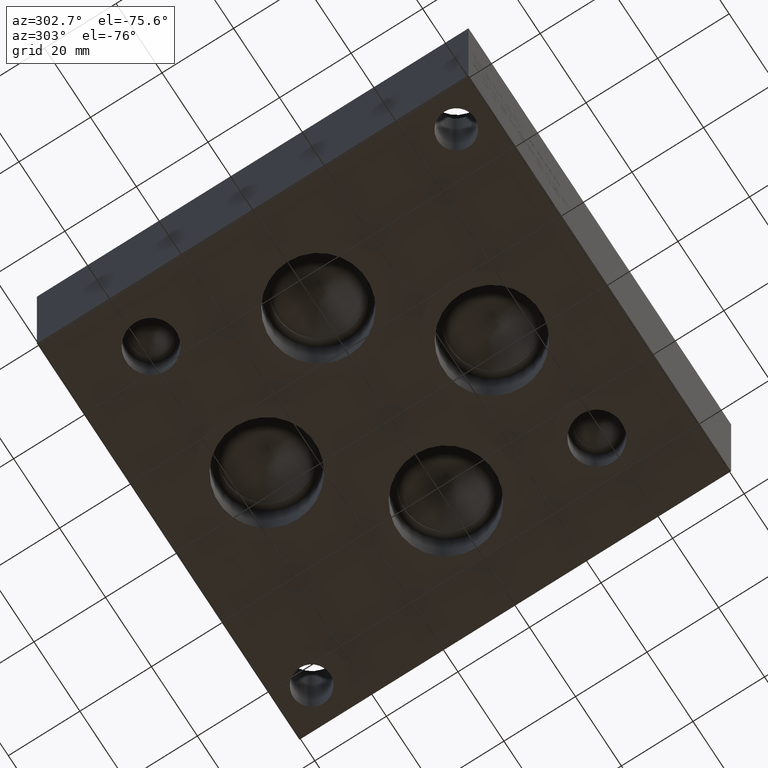
[diagram: clean part render]
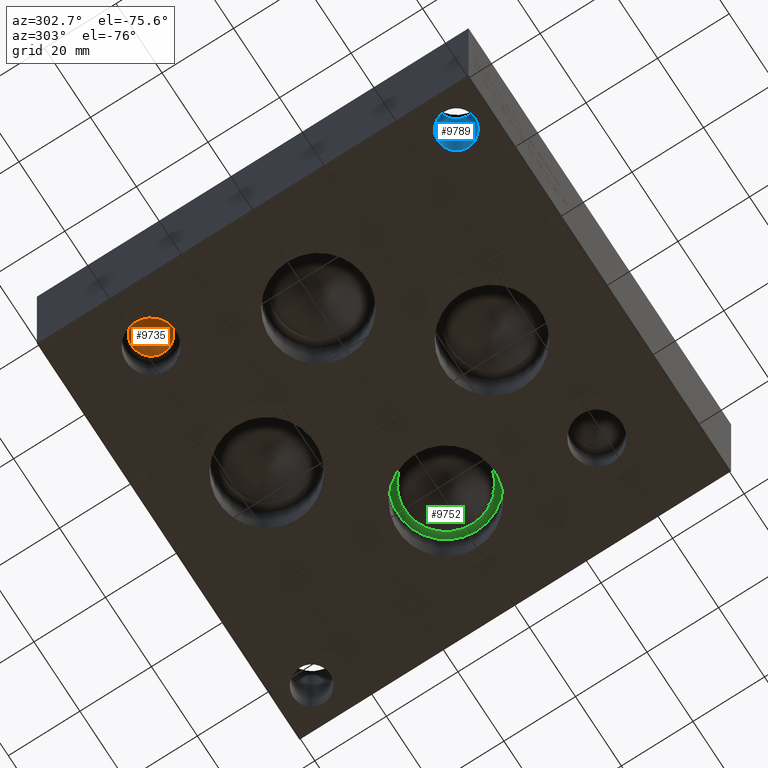
[diagram: same view with three faces highlighted in distinct colors, each labeled with its STEP entity id]
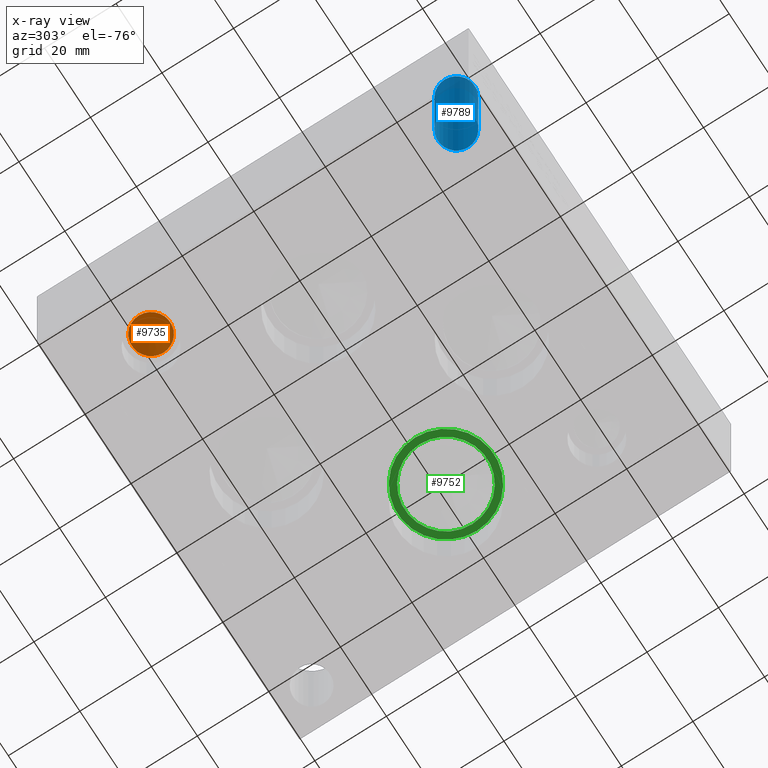
[diagram: x-ray of the same camera — body ghosted, the three highlighted faces saturated]
A machine part, auxiliary view with three faces highlighted in distinct colors.
The next image is the same camera in x-ray (body ghosted, the three faces saturated) — at least one of them is partly hidden behind the body in this view.
Their STEP definitions:

[orange] entity #9735 — the highlighted conical surface has half-angle 60 deg.
#44=CONICAL_SURFACE('',#10136,2.6797,1.0471975511966);
#74=CIRCLE('',#10137,5.3594);
#75=CIRCLE('',#10138,5.3594);
#1030=FACE_OUTER_BOUND('',#1571,.T.);
#1571=EDGE_LOOP('',(#8248,#8249,#8250,#8251));
#2597=LINE('',#16246,#3586);
#3586=VECTOR('',#11882,2.6797);
#4439=VERTEX_POINT('',#16242);
#4440=VERTEX_POINT('',#16243);
#4441=VERTEX_POINT('',#16245);
#5743=EDGE_CURVE('',#4439,#4440,#74,.T.);
#5744=EDGE_CURVE('',#4440,#4441,#2597,.T.);
#5745=EDGE_CURVE('',#4440,#4439,#75,.T.);
#8248=ORIENTED_EDGE('',*,*,#5743,.T.);
#8249=ORIENTED_EDGE('',*,*,#5744,.T.);
#8250=ORIENTED_EDGE('',*,*,#5744,.F.);
#8251=ORIENTED_EDGE('',*,*,#5745,.T.);
#9735=ADVANCED_FACE('',(#1030),#44,.F.);
#10136=AXIS2_PLACEMENT_3D('',#16241,#11878,#11879);
#10137=AXIS2_PLACEMENT_3D('',#16244,#11880,#11881);
#10138=AXIS2_PLACEMENT_3D('',#16247,#11883,#11884);
#11878=DIRECTION('center_axis',(0.,0.,-1.));
#11879=DIRECTION('ref_axis',(1.,0.,0.));
#11880=DIRECTION('center_axis',(0.,0.,-1.));
#11881=DIRECTION('ref_axis',(1.,0.,0.));
#11882=DIRECTION('',(0.866025403784439,-1.06057523872491E-16,0.5));
#11883=DIRECTION('center_axis',(0.,0.,-1.));
#11884=DIRECTION('ref_axis',(1.,0.,0.));
#16241=CARTESIAN_POINT('Origin',(15.0876,98.425,13.2611555163474));
#16242=CARTESIAN_POINT('',(20.447,98.425,11.71403));
#16243=CARTESIAN_POINT('',(9.7282,98.425,11.71403));
#16244=CARTESIAN_POINT('Origin',(15.0876,98.425,11.71403));
#16245=CARTESIAN_POINT('',(15.0876,98.425,14.8082810326949));
#16246=CARTESIAN_POINT('',(12.4079,98.425,13.2611555163474));
#16247=CARTESIAN_POINT('Origin',(15.0876,98.425,11.71403));

[blue] entity #9789 — the highlighted cylindrical surface (bore or boss wall) has radius 5.1562 mm, axis along (0, 0, 1).
#41=CYLINDRICAL_SURFACE('',#10277,5.1562);
#72=CIRCLE('',#9869,5.1562);
#158=CIRCLE('',#10273,5.1562);
#1084=FACE_OUTER_BOUND('',#1636,.T.);
#1636=EDGE_LOOP('',(#8497,#8498,#8499,#8500));
#2640=LINE('',#16529,#3629);
#3629=VECTOR('',#12205,5.1562);
#3767=VERTEX_POINT('',#12795);
#4539=VERTEX_POINT('',#16520);
#4732=EDGE_CURVE('',#3767,#3767,#72,.T.);
#5869=EDGE_CURVE('',#4539,#4539,#158,.T.);
#5873=EDGE_CURVE('',#4539,#3767,#2640,.T.);
#8497=ORIENTED_EDGE('',*,*,#5869,.T.);
#8498=ORIENTED_EDGE('',*,*,#5873,.T.);
#8499=ORIENTED_EDGE('',*,*,#4732,.F.);
#8500=ORIENTED_EDGE('',*,*,#5873,.F.);
#9789=ADVANCED_FACE('',(#1084),#41,.F.);
#9869=AXIS2_PLACEMENT_3D('',#12796,#10549,#10550);
#10273=AXIS2_PLACEMENT_3D('',#16521,#12194,#12195);
#10277=AXIS2_PLACEMENT_3D('',#16528,#12203,#12204);
#10549=DIRECTION('center_axis',(0.,0.,1.));
#10550=DIRECTION('ref_axis',(1.,0.,0.));
#12194=DIRECTION('center_axis',(0.,0.,1.));
#12195=DIRECTION('ref_axis',(1.,0.,0.));
#12203=DIRECTION('center_axis',(0.,0.,1.));
#12204=DIRECTION('ref_axis',(1.,0.,0.));
#12205=DIRECTION('',(0.,0.,-1.));
#12795=CARTESIAN_POINT('',(4.3688,9.525,0.));
#12796=CARTESIAN_POINT('Origin',(9.525,9.525,0.));
#16520=CARTESIAN_POINT('',(4.3688,9.525,30.1752));
#16521=CARTESIAN_POINT('Origin',(9.525,9.525,30.1752));
#16528=CARTESIAN_POINT('Origin',(9.525,9.525,-127.58695823863));
#16529=CARTESIAN_POINT('',(4.3688,9.525,-127.58695823863));

[green] entity #9752 — the highlighted planar face has unit normal (0, 0, -1).
#96=CIRCLE('',#10176,13.462);
#97=CIRCLE('',#10177,13.462);
#98=CIRCLE('',#10178,11.5062);
#217=FACE_BOUND('',#1593,.T.);
#1047=FACE_OUTER_BOUND('',#1592,.T.);
#1592=EDGE_LOOP('',(#8324,#8325));
#1593=EDGE_LOOP('',(#8326));
#4466=VERTEX_POINT('',#16321);
#4467=VERTEX_POINT('',#16322);
#4468=VERTEX_POINT('',#16325);
#5778=EDGE_CURVE('',#4466,#4467,#96,.T.);
#5779=EDGE_CURVE('',#4467,#4466,#97,.T.);
#5780=EDGE_CURVE('',#4468,#4468,#98,.T.);
#8324=ORIENTED_EDGE('',*,*,#5778,.T.);
#8325=ORIENTED_EDGE('',*,*,#5779,.T.);
#8326=ORIENTED_EDGE('',*,*,#5780,.F.);
#8873=PLANE('',#10175);
#9752=ADVANCED_FACE('',(#1047,#217),#8873,.T.);
#10175=AXIS2_PLACEMENT_3D('',#16320,#11969,#11970);
#10176=AXIS2_PLACEMENT_3D('',#16323,#11971,#11972);
#10177=AXIS2_PLACEMENT_3D('',#16324,#11973,#11974);
#10178=AXIS2_PLACEMENT_3D('',#16326,#11975,#11976);
#11969=DIRECTION('center_axis',(0.,0.,-1.));
#11970=DIRECTION('ref_axis',(1.,0.,0.));
#11971=DIRECTION('center_axis',(0.,0.,-1.));
#11972=DIRECTION('ref_axis',(1.,0.,0.));
#11973=DIRECTION('center_axis',(0.,0.,-1.));
#11974=DIRECTION('ref_axis',(1.,0.,0.));
#11975=DIRECTION('center_axis',(0.,0.,-1.));
#11976=DIRECTION('ref_axis',(1.,0.,0.));
#16320=CARTESIAN_POINT('Origin',(84.1248,60.325,15.8496));
#16321=CARTESIAN_POINT('',(97.5868,60.325,15.8496));
#16322=CARTESIAN_POINT('',(70.6628,60.325,15.8496));
#16323=CARTESIAN_POINT('Origin',(84.1248,60.325,15.8496));
#16324=CARTESIAN_POINT('Origin',(84.1248,60.325,15.8496));
#16325=CARTESIAN_POINT('',(72.6186,60.325,15.8496));
#16326=CARTESIAN_POINT('Origin',(84.1248,60.325,15.8496));